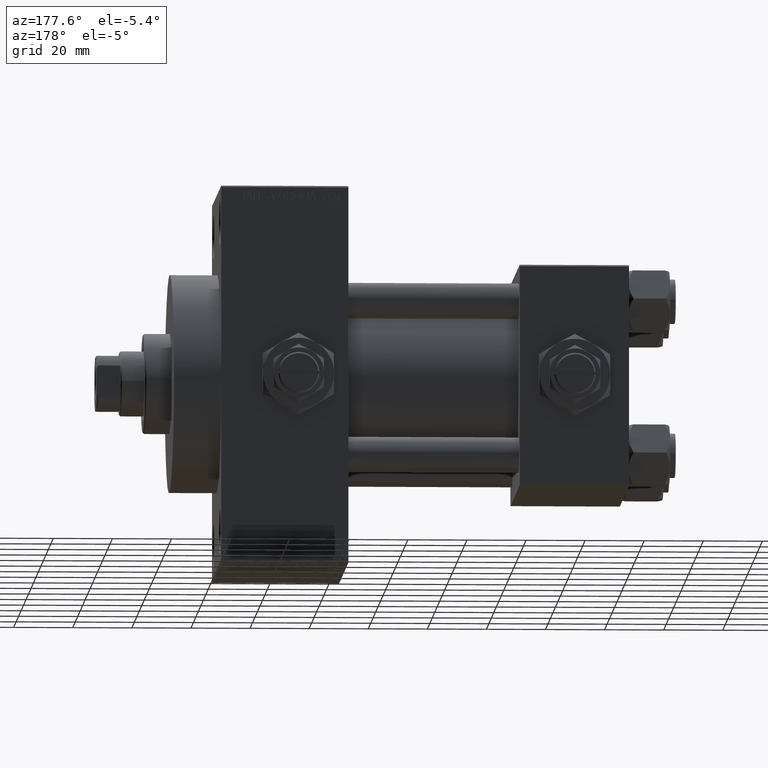
[diagram: clean part render]
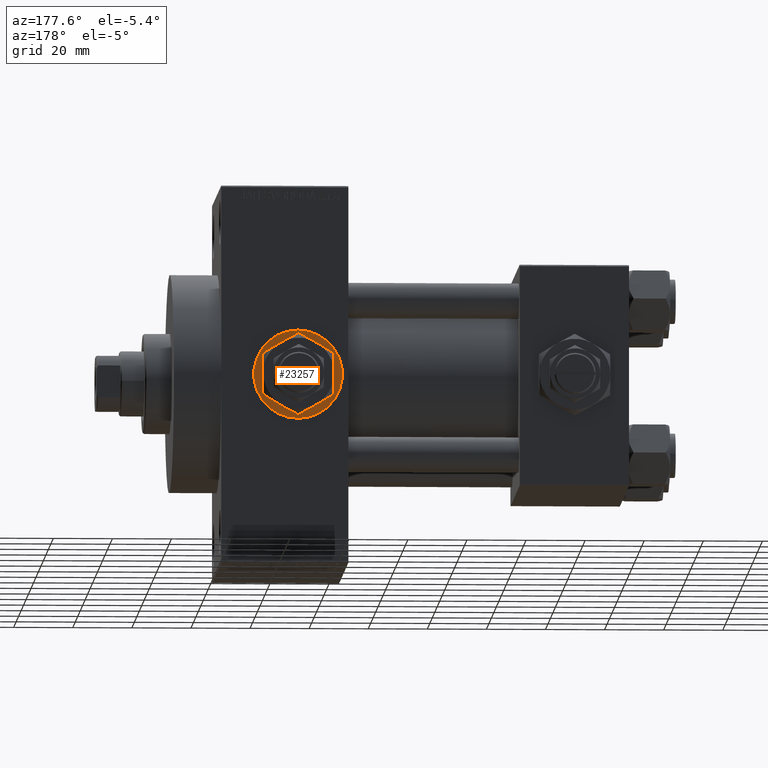
[diagram: same view with one face highlighted and labeled with its STEP entity id]
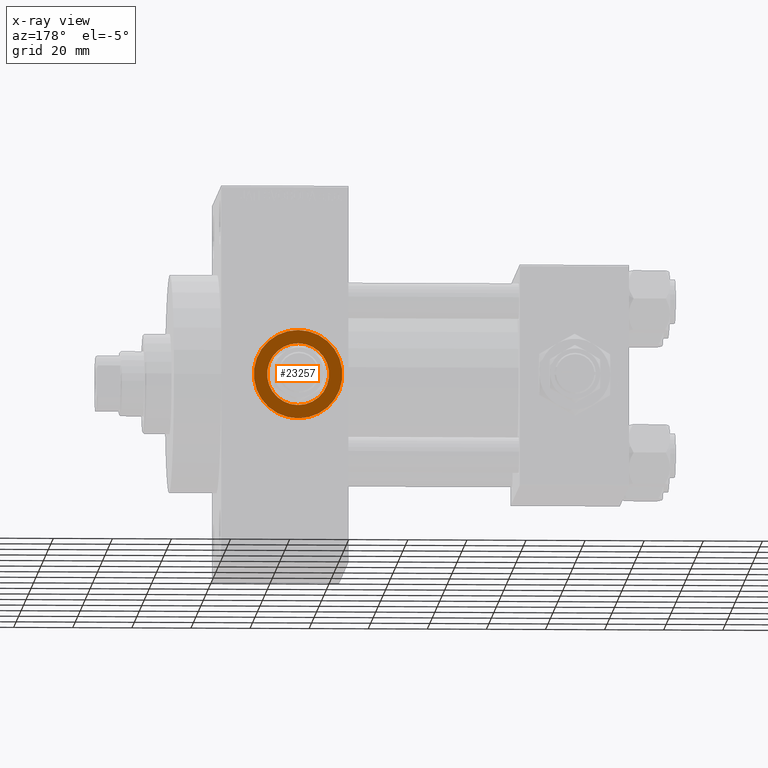
[diagram: x-ray of the same camera — body ghosted, the highlighted face saturated]
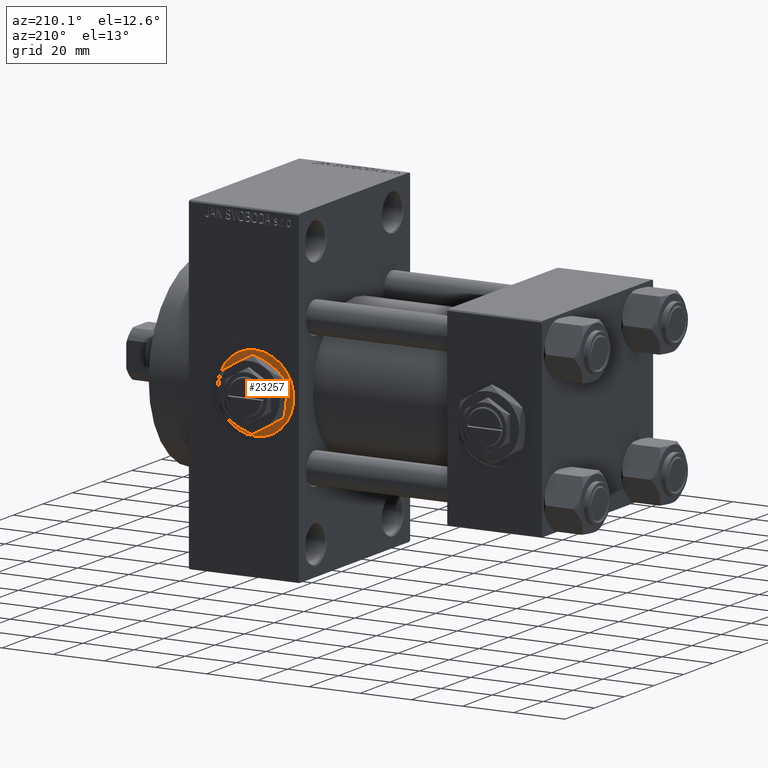
[diagram: same view with one face highlighted and labeled with its STEP entity id]
A machine part, auxiliary view. The second image highlights one B-rep face of the part: STEP entity #23257.
The next image is the same camera in x-ray: the body ghosted, the highlighted face saturated — about 0% of this face is hidden behind the body in this view.
A second angle (auxiliary view) of the same face is appended — the face is thin or edge-on in the first view.
In plain terms, the highlighted planar face has unit normal (0, 1, 0).
Its self-contained STEP definition (entity closure, byte-faithful):
#1128 = EDGE_CURVE ( 'NONE', #21667, #13144, #39650, .T. ) ;
#1517 = CARTESIAN_POINT ( 'NONE',  ( 112.0000000000000000, 37.29999999999999716, -2.032879073410320814E-15 ) ) ;
#3069 = CARTESIAN_POINT ( 'NONE',  ( 112.0000000000000000, 37.29999999999999716, -2.032879073410320814E-15 ) ) ;
#3234 = VERTEX_POINT ( 'NONE', #17020 ) ;
#4477 = CARTESIAN_POINT ( 'NONE',  ( 112.0000000000000000, 37.30000000000000426, -2.032879073410320814E-15 ) ) ;
#5375 = CARTESIAN_POINT ( 'NONE',  ( 112.0000000000000000, 37.30000000000000426, -2.032879073410320814E-15 ) ) ;
#7663 = CARTESIAN_POINT ( 'NONE',  ( 112.0000000000000000, 37.29999999999999716, -2.032879073410320814E-15 ) ) ;
#9937 = CARTESIAN_POINT ( 'NONE',  ( 112.0000000000000000, 37.30000000000000426, -10.48000000000000220 ) ) ;
#10380 = ORIENTED_EDGE ( 'NONE', *, *, #1128, .F. ) ;
#13144 = VERTEX_POINT ( 'NONE', #28506 ) ;
#14508 = ORIENTED_EDGE ( 'NONE', *, *, #15211, .T. ) ;
#14531 = DIRECTION ( 'NONE',  ( 0.000000000000000000, 1.000000000000000000, 0.000000000000000000 ) ) ;
#14554 = EDGE_LOOP ( 'NONE', ( #22794, #10380 ) ) ;
#15211 = EDGE_CURVE ( 'NONE', #36356, #3234, #39431, .T. ) ;
#15392 = DIRECTION ( 'NONE',  ( 0.000000000000000000, 0.000000000000000000, 1.000000000000000000 ) ) ;
#16593 = CIRCLE ( 'NONE', #49249, 10.48000000000000043 ) ;
#17020 = CARTESIAN_POINT ( 'NONE',  ( 112.0000000000000000, 37.29999999999999716, -15.00000000000001421 ) ) ;
#18260 = FACE_BOUND ( 'NONE', #14554, .T. ) ;
#18371 = DIRECTION ( 'NONE',  ( 0.000000000000000000, 1.000000000000000000, 0.000000000000000000 ) ) ;
#19665 = DIRECTION ( 'NONE',  ( 0.000000000000000000, 1.000000000000000000, 0.000000000000000000 ) ) ;
#20116 = ORIENTED_EDGE ( 'NONE', *, *, #28916, .T. ) ;
#20435 = DIRECTION ( 'NONE',  ( 0.000000000000000000, 1.000000000000000000, 0.000000000000000000 ) ) ;
#20680 = AXIS2_PLACEMENT_3D ( 'NONE', #1517, #20435, #35154 ) ;
#21667 = VERTEX_POINT ( 'NONE', #9937 ) ;
#22794 = ORIENTED_EDGE ( 'NONE', *, *, #26109, .F. ) ;
#23257 = ADVANCED_FACE ( 'NONE', ( #18260, #44670 ), #37186, .T. ) ;
#25460 = CIRCLE ( 'NONE', #20680, 15.00000000000001243 ) ;
#26109 = EDGE_CURVE ( 'NONE', #13144, #21667, #16593, .T. ) ;
#27415 = DIRECTION ( 'NONE',  ( 0.000000000000000000, 0.000000000000000000, 1.000000000000000000 ) ) ;
#27838 = DIRECTION ( 'NONE',  ( 0.000000000000000000, 0.000000000000000000, 1.000000000000000000 ) ) ;
#28506 = CARTESIAN_POINT ( 'NONE',  ( 112.0000000000000000, 37.30000000000000426, 10.47999999999999865 ) ) ;
#28916 = EDGE_CURVE ( 'NONE', #3234, #36356, #25460, .T. ) ;
#29731 = DIRECTION ( 'NONE',  ( 0.000000000000000000, -0.000000000000000000, 1.000000000000000000 ) ) ;
#30139 = AXIS2_PLACEMENT_3D ( 'NONE', #3069, #14531, #29731 ) ;
#34795 = EDGE_LOOP ( 'NONE', ( #14508, #20116 ) ) ;
#34903 = AXIS2_PLACEMENT_3D ( 'NONE', #4477, #19665, #27415 ) ;
#35154 = DIRECTION ( 'NONE',  ( 0.000000000000000000, 0.000000000000000000, 1.000000000000000000 ) ) ;
#36356 = VERTEX_POINT ( 'NONE', #36633 ) ;
#36633 = CARTESIAN_POINT ( 'NONE',  ( 112.0000000000000000, 37.29999999999999716, 15.00000000000001066 ) ) ;
#37186 = PLANE ( 'NONE',  #30139 ) ;
#39431 = CIRCLE ( 'NONE', #44992, 15.00000000000001243 ) ;
#39650 = CIRCLE ( 'NONE', #34903, 10.48000000000000043 ) ;
#43736 = DIRECTION ( 'NONE',  ( 0.000000000000000000, 1.000000000000000000, 0.000000000000000000 ) ) ;
#44670 = FACE_OUTER_BOUND ( 'NONE', #34795, .T. ) ;
#44992 = AXIS2_PLACEMENT_3D ( 'NONE', #7663, #18371, #15392 ) ;
#49249 = AXIS2_PLACEMENT_3D ( 'NONE', #5375, #43736, #27838 ) ;